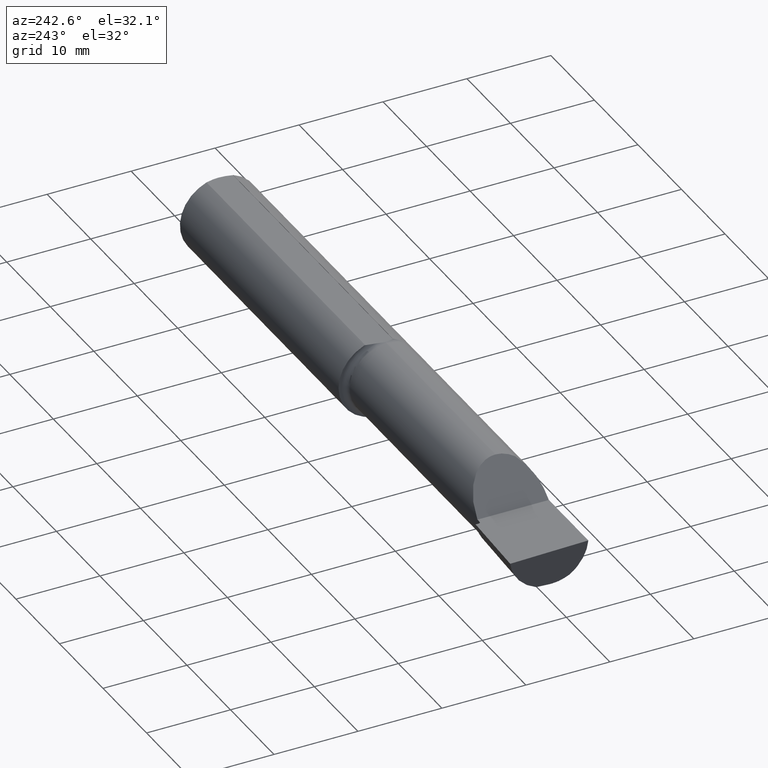
[diagram: clean part render]
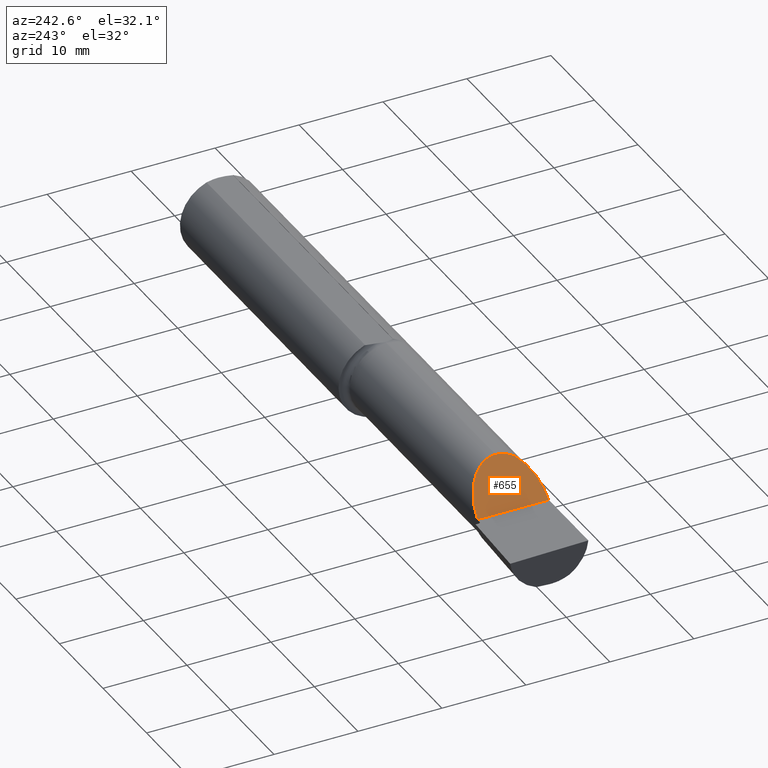
[diagram: same view with one face highlighted and labeled with its STEP entity id]
A machine part, auxiliary view. The second image highlights one B-rep face of the part: STEP entity #655.
In plain terms, the highlighted planar face has unit normal (0.7071, 0, -0.7071).
Its self-contained STEP definition (entity closure, byte-faithful):
#37 = CARTESIAN_POINT ( 'NONE',  ( -2.630000000000001670, 0.1873499999999999888, 3.826894855694929702E-18 ) ) ;
#48 = VERTEX_POINT ( 'NONE', #700 ) ;
#66 = EDGE_LOOP ( 'NONE', ( #767, #328, #485, #350 ) ) ;
#125 = VERTEX_POINT ( 'NONE', #150 ) ;
#126 =( BOUNDED_CURVE ( )  B_SPLINE_CURVE ( 3, ( #148, #835, #557, #217 ),
 .UNSPECIFIED., .F., .F. ) 
 B_SPLINE_CURVE_WITH_KNOTS ( ( 4, 4 ),
 ( 4.712388980384689674, 6.283185307179586232 ),
 .UNSPECIFIED. ) 
 CURVE ( )  GEOMETRIC_REPRESENTATION_ITEM ( )  RATIONAL_B_SPLINE_CURVE ( ( 1.000000000000000000, 0.8047378541243649375, 0.8047378541243649375, 1.000000000000000000 ) ) 
 REPRESENTATION_ITEM ( '' )  );
#148 = CARTESIAN_POINT ( 'NONE',  ( -2.630000000000001670, 0.1476500000000000867, 3.826894855694929702E-18 ) ) ;
#150 = CARTESIAN_POINT ( 'NONE',  ( -2.630000000000001670, -0.1873499999999999888, 3.826894855694929702E-18 ) ) ;
#172 = DIRECTION ( 'NONE',  ( 0.7071067811865436870, 0.000000000000000000, -0.7071067811865513475 ) ) ;
#195 = CARTESIAN_POINT ( 'NONE',  ( -2.630000000000001670, -0.1873499999999999888, 3.826894855694929702E-18 ) ) ;
#212 = CARTESIAN_POINT ( 'NONE',  ( -2.463370910109909939, -0.08273216874457642311, 0.1666290898900900375 ) ) ;
#217 = CARTESIAN_POINT ( 'NONE',  ( -2.456350000000000033, -0.02600000000000000921, 0.1736500000000001098 ) ) ;
#238 = CARTESIAN_POINT ( 'NONE',  ( -2.630000000000001670, 0.1873499999999999888, 3.826894855694929702E-18 ) ) ;
#248 = DIRECTION ( 'NONE',  ( 0.000000000000000000, 1.000000000000000000, 0.000000000000000000 ) ) ;
#253 = DIRECTION ( 'NONE',  ( 0.000000000000000000, 1.000000000000000000, 0.000000000000000000 ) ) ;
#279 = CARTESIAN_POINT ( 'NONE',  ( -2.456350000000000033, -0.02600000000000000921, 0.1736500000000001098 ) ) ;
#314 = VERTEX_POINT ( 'NONE', #660 ) ;
#328 = ORIENTED_EDGE ( 'NONE', *, *, #651, .F. ) ;
#330 = CARTESIAN_POINT ( 'NONE',  ( -2.630000000000001670, 0.1476500000000000867, 3.826894855694929702E-18 ) ) ;
#337 = CARTESIAN_POINT ( 'NONE',  ( -2.512807819182183433, -0.1588049511472809372, 0.1171921808178171820 ) ) ;
#350 = ORIENTED_EDGE ( 'NONE', *, *, #783, .F. ) ;
#374 = VERTEX_POINT ( 'NONE', #330 ) ;
#386 = AXIS2_PLACEMENT_3D ( 'NONE', #37, #172, #248 ) ;
#442 = EDGE_CURVE ( 'NONE', #48, #125, #784, .T. ) ;
#485 = ORIENTED_EDGE ( 'NONE', *, *, #442, .F. ) ;
#528 = FACE_OUTER_BOUND ( 'NONE', #66, .T. ) ;
#557 = CARTESIAN_POINT ( 'NONE',  ( -2.456349999999999589, 0.07572181489391210940, 0.1736500000000001098 ) ) ;
#588 = VECTOR ( 'NONE', #253, 39.37007874015748143 ) ;
#651 = EDGE_CURVE ( 'NONE', #125, #374, #875, .T. ) ;
#655 = ADVANCED_FACE ( 'NONE', ( #528 ), #811, .F. ) ;
#660 = CARTESIAN_POINT ( 'NONE',  ( -2.456350000000000033, -0.02600000000000000921, 0.1736500000000001098 ) ) ;
#686 =( BOUNDED_CURVE ( )  B_SPLINE_CURVE ( 3, ( #279, #759, #212, #763 ),
 .UNSPECIFIED., .F., .F. ) 
 B_SPLINE_CURVE_WITH_KNOTS ( ( 4, 4 ),
 ( 0.000000000000000000, 0.4925172727972039755 ),
 .UNSPECIFIED. ) 
 CURVE ( )  GEOMETRIC_REPRESENTATION_ITEM ( )  RATIONAL_B_SPLINE_CURVE ( ( 1.000000000000000000, 0.9798875109367806147, 0.9798875109367806147, 1.000000000000000000 ) ) 
 REPRESENTATION_ITEM ( '' )  );
#688 = CARTESIAN_POINT ( 'NONE',  ( -2.476989106396330964, -0.1081096153846006908, 0.1530108936036691236 ) ) ;
#694 = CARTESIAN_POINT ( 'NONE',  ( -2.567927483910138697, -0.1873499999999999888, 0.06207251608986254915 ) ) ;
#700 = CARTESIAN_POINT ( 'NONE',  ( -2.476989106396330964, -0.1081096153846006908, 0.1530108936036691236 ) ) ;
#749 = EDGE_CURVE ( 'NONE', #374, #314, #126, .T. ) ;
#759 = CARTESIAN_POINT ( 'NONE',  ( -2.456349999999999589, -0.05480052201024780689, 0.1736500000000001376 ) ) ;
#763 = CARTESIAN_POINT ( 'NONE',  ( -2.476989106396330964, -0.1081096153846006908, 0.1530108936036691236 ) ) ;
#767 = ORIENTED_EDGE ( 'NONE', *, *, #749, .F. ) ;
#783 = EDGE_CURVE ( 'NONE', #314, #48, #686, .T. ) ;
#784 =( BOUNDED_CURVE ( )  B_SPLINE_CURVE ( 3, ( #688, #337, #694, #195 ),
 .UNSPECIFIED., .F., .F. ) 
 B_SPLINE_CURVE_WITH_KNOTS ( ( 4, 4 ),
 ( 0.6151074146447836899, 1.570796326794896558 ),
 .UNSPECIFIED. ) 
 CURVE ( )  GEOMETRIC_REPRESENTATION_ITEM ( )  RATIONAL_B_SPLINE_CURVE ( ( 1.000000000000000000, 0.9253254977684246541, 0.9253254977684246541, 1.000000000000000000 ) ) 
 REPRESENTATION_ITEM ( '' )  );
#811 = PLANE ( 'NONE',  #386 ) ;
#835 = CARTESIAN_POINT ( 'NONE',  ( -2.528278185106088483, 0.1476500000000001145, 0.1017218148939120770 ) ) ;
#875 = LINE ( 'NONE', #238, #588 ) ;